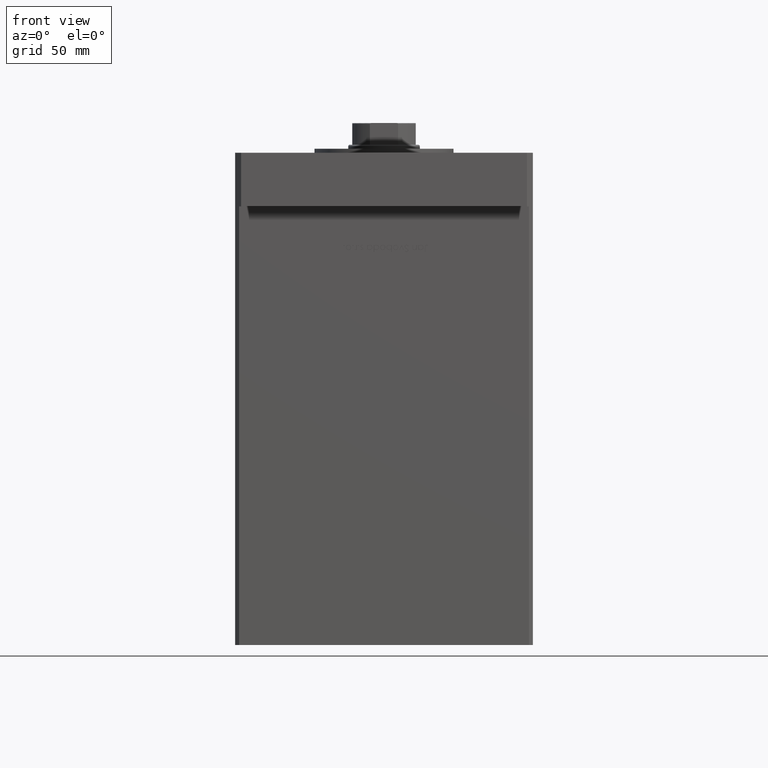
[diagram: clean part render]
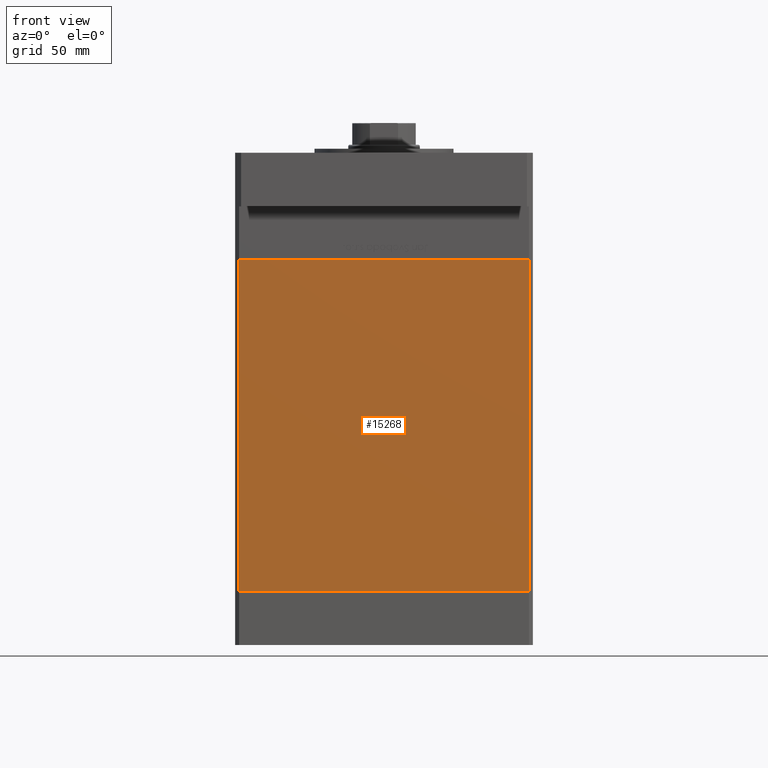
[diagram: same view with one face highlighted and labeled with its STEP entity id]
A machine part, front view. The second image highlights one B-rep face of the part: STEP entity #15268.
In plain terms, the highlighted planar face has unit normal (0, 1, 0).
Its self-contained STEP definition (entity closure, byte-faithful):
#1957 = CARTESIAN_POINT ( 'NONE',  ( 72.99999999999998579, -62.50000000000000000, 0.000000000000000000 ) ) ;
#3831 = ORIENTED_EDGE ( 'NONE', *, *, #24339, .F. ) ;
#4191 = AXIS2_PLACEMENT_3D ( 'NONE', #29210, #7843, #12178 ) ;
#4300 = LINE ( 'NONE', #53071, #49107 ) ;
#5411 = EDGE_CURVE ( 'NONE', #30800, #23105, #24005, .T. ) ;
#6920 = DIRECTION ( 'NONE',  ( 1.000000000000000000, 0.000000000000000000, 0.000000000000000000 ) ) ;
#7843 = DIRECTION ( 'NONE',  ( 0.000000000000000000, 1.000000000000000000, 0.000000000000000000 ) ) ;
#11261 = CARTESIAN_POINT ( 'NONE',  ( -72.99999999999998579, -62.50000000000000000, 167.0000000000000000 ) ) ;
#11630 = DIRECTION ( 'NONE',  ( -0.000000000000000000, -0.000000000000000000, -1.000000000000000000 ) ) ;
#12178 = DIRECTION ( 'NONE',  ( 0.000000000000000000, -0.000000000000000000, 1.000000000000000000 ) ) ;
#13816 = VECTOR ( 'NONE', #43899, 1000.000000000000000 ) ;
#15268 = ADVANCED_FACE ( 'NONE', ( #40610 ), #49543, .F. ) ;
#18561 = VERTEX_POINT ( 'NONE', #1957 ) ;
#20075 = CARTESIAN_POINT ( 'NONE',  ( -72.99999999999998579, -62.50000000000000000, 167.0000000000000000 ) ) ;
#22523 = EDGE_CURVE ( 'NONE', #30800, #34645, #28556, .T. ) ;
#23039 = CARTESIAN_POINT ( 'NONE',  ( -72.99999999999998579, -62.50000000000000000, 0.000000000000000000 ) ) ;
#23105 = VERTEX_POINT ( 'NONE', #23039 ) ;
#24005 = LINE ( 'NONE', #40532, #52498 ) ;
#24339 = EDGE_CURVE ( 'NONE', #34645, #18561, #4300, .T. ) ;
#26340 = CARTESIAN_POINT ( 'NONE',  ( 72.99999999999998579, -62.50000000000000000, 167.0000000000000000 ) ) ;
#28556 = LINE ( 'NONE', #11261, #45948 ) ;
#29210 = CARTESIAN_POINT ( 'NONE',  ( -72.99999999999998579, -62.50000000000000000, 167.0000000000000000 ) ) ;
#29393 = DIRECTION ( 'NONE',  ( -0.000000000000000000, -0.000000000000000000, -1.000000000000000000 ) ) ;
#29715 = EDGE_CURVE ( 'NONE', #23105, #18561, #30915, .T. ) ;
#30140 = ORIENTED_EDGE ( 'NONE', *, *, #5411, .T. ) ;
#30800 = VERTEX_POINT ( 'NONE', #20075 ) ;
#30915 = LINE ( 'NONE', #39310, #13816 ) ;
#34645 = VERTEX_POINT ( 'NONE', #26340 ) ;
#39310 = CARTESIAN_POINT ( 'NONE',  ( -72.99999999999998579, -62.50000000000000000, 0.000000000000000000 ) ) ;
#40532 = CARTESIAN_POINT ( 'NONE',  ( -72.99999999999998579, -62.50000000000000000, 167.0000000000000000 ) ) ;
#40610 = FACE_OUTER_BOUND ( 'NONE', #47576, .T. ) ;
#43899 = DIRECTION ( 'NONE',  ( 1.000000000000000000, 0.000000000000000000, 0.000000000000000000 ) ) ;
#44823 = ORIENTED_EDGE ( 'NONE', *, *, #29715, .T. ) ;
#45568 = ORIENTED_EDGE ( 'NONE', *, *, #22523, .F. ) ;
#45948 = VECTOR ( 'NONE', #6920, 1000.000000000000000 ) ;
#47576 = EDGE_LOOP ( 'NONE', ( #44823, #3831, #45568, #30140 ) ) ;
#49107 = VECTOR ( 'NONE', #11630, 1000.000000000000000 ) ;
#49543 = PLANE ( 'NONE',  #4191 ) ;
#52498 = VECTOR ( 'NONE', #29393, 1000.000000000000000 ) ;
#53071 = CARTESIAN_POINT ( 'NONE',  ( 72.99999999999998579, -62.50000000000000000, 167.0000000000000000 ) ) ;